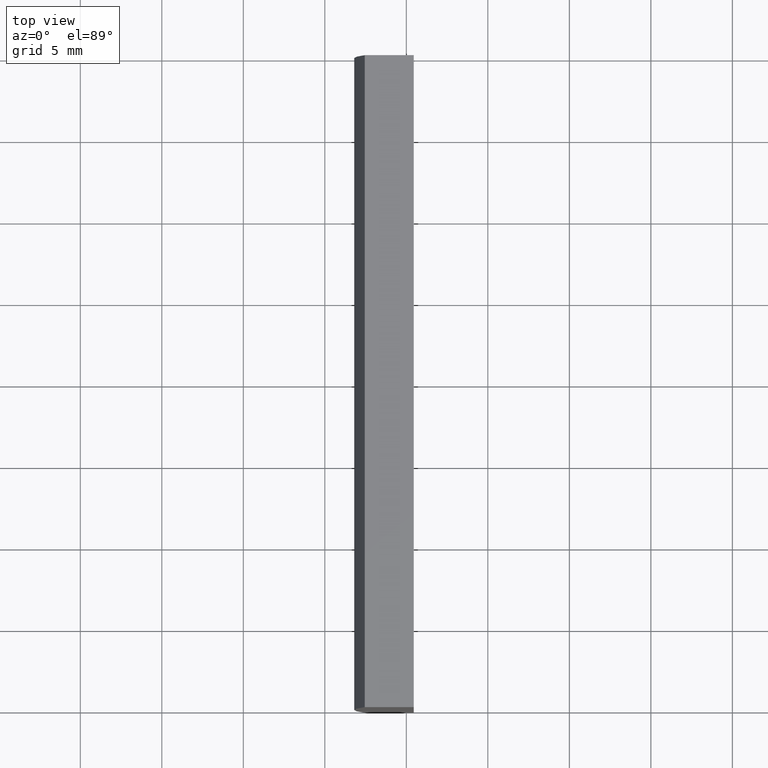
[diagram: clean part render]
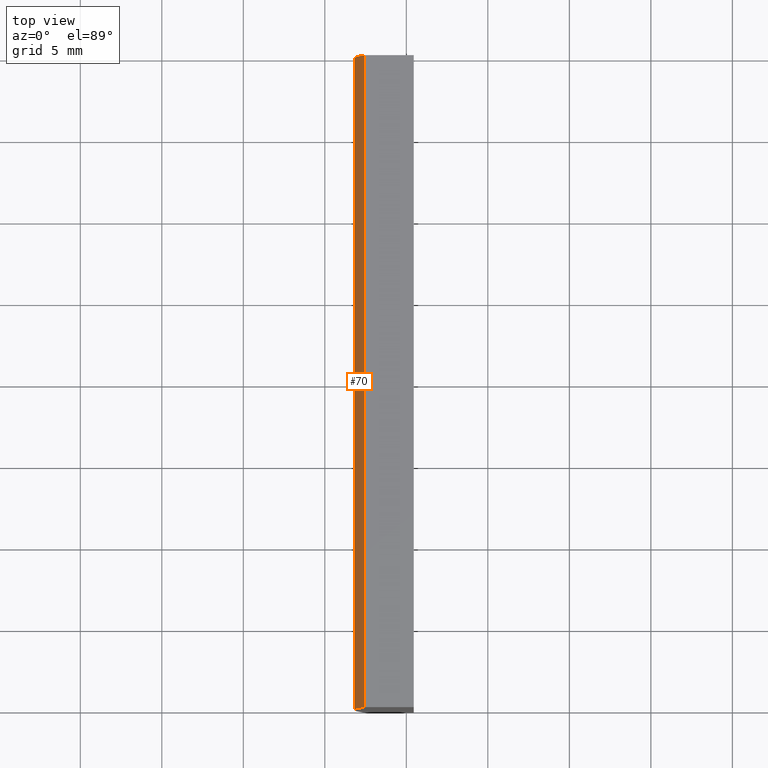
[diagram: same view with one face highlighted and labeled with its STEP entity id]
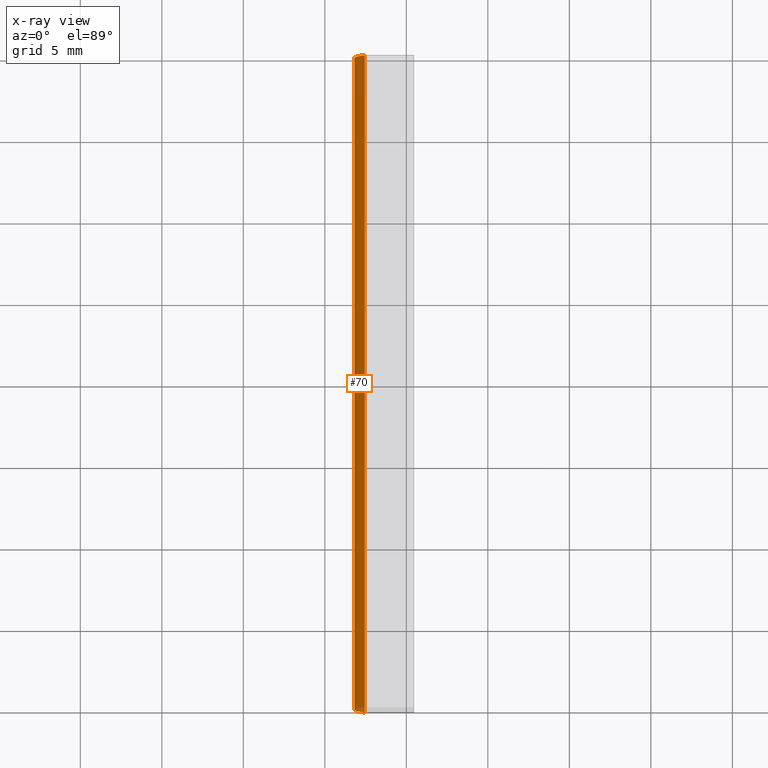
[diagram: x-ray of the same camera — body ghosted, the highlighted face saturated]
A machine part, top view. The second image highlights one B-rep face of the part: STEP entity #70.
The next image is the same camera in x-ray: the body ghosted, the highlighted face saturated — about 0% of this face is hidden behind the body in this view.
In plain terms, the highlighted cylindrical surface (partial cylindrical patch) has radius 77.55 mm, axis along (-0, -1, -0).
Its self-contained STEP definition (entity closure, byte-faithful):
#3 = CARTESIAN_POINT ( 'NONE',  ( 4.355204334851265500, 0.0000000000000000000, 4.286263797015675000E-017 ) ) ;
#12 = ORIENTED_EDGE ( 'NONE', *, *, #165, .T. ) ;
#13 = AXIS2_PLACEMENT_3D ( 'NONE', #35, #116, #37 ) ;
#14 = CARTESIAN_POINT ( 'NONE',  ( -72.54734763840902200, 40.00000000000000000, -10.00000000000000000 ) ) ;
#17 = CYLINDRICAL_SURFACE ( 'NONE', #13, 77.54999999999999700 ) ;
#18 = VERTEX_POINT ( 'NONE', #154 ) ;
#35 = CARTESIAN_POINT ( 'NONE',  ( 4.355204334851265500, 40.00000000000000000, 4.286263797015675000E-017 ) ) ;
#37 = DIRECTION ( 'NONE',  ( 0.0000000000000000000, 0.0000000000000000000, -1.000000000000000000 ) ) ;
#38 = DIRECTION ( 'NONE',  ( 0.0000000000000000000, 0.0000000000000000000, 1.000000000000000000 ) ) ;
#49 = LINE ( 'NONE', #14, #98 ) ;
#56 = AXIS2_PLACEMENT_3D ( 'NONE', #185, #80, #88 ) ;
#65 = VECTOR ( 'NONE', #68, 1000.000000000000000 ) ;
#68 = DIRECTION ( 'NONE',  ( -0.0000000000000000000, -1.000000000000000000, -0.0000000000000000000 ) ) ;
#70 = ADVANCED_FACE ( 'NONE', ( #150 ), #17, .T. ) ;
#72 = CIRCLE ( 'NONE', #138, 77.54999999999999700 ) ;
#80 = DIRECTION ( 'NONE',  ( 0.0000000000000000000, 1.000000000000000000, 0.0000000000000000000 ) ) ;
#83 = VERTEX_POINT ( 'NONE', #189 ) ;
#86 = EDGE_CURVE ( 'NONE', #89, #83, #155, .T. ) ;
#88 = DIRECTION ( 'NONE',  ( 0.0000000000000000000, 0.0000000000000000000, 1.000000000000000000 ) ) ;
#89 = VERTEX_POINT ( 'NONE', #130 ) ;
#90 = ORIENTED_EDGE ( 'NONE', *, *, #101, .F. ) ;
#98 = VECTOR ( 'NONE', #129, 1000.000000000000000 ) ;
#101 = EDGE_CURVE ( 'NONE', #83, #18, #114, .T. ) ;
#114 = LINE ( 'NONE', #179, #65 ) ;
#116 = DIRECTION ( 'NONE',  ( -0.0000000000000000000, -1.000000000000000000, -0.0000000000000000000 ) ) ;
#129 = DIRECTION ( 'NONE',  ( -0.0000000000000000000, -1.000000000000000000, -0.0000000000000000000 ) ) ;
#130 = CARTESIAN_POINT ( 'NONE',  ( -72.54734763840902200, 40.00000000000000000, -10.00000000000000000 ) ) ;
#138 = AXIS2_PLACEMENT_3D ( 'NONE', #3, #197, #38 ) ;
#147 = ORIENTED_EDGE ( 'NONE', *, *, #86, .F. ) ;
#150 = FACE_OUTER_BOUND ( 'NONE', #190, .T. ) ;
#151 = VERTEX_POINT ( 'NONE', #170 ) ;
#154 = CARTESIAN_POINT ( 'NONE',  ( -72.54734763840902200, 0.0000000000000000000, 10.00000000000000000 ) ) ;
#155 = CIRCLE ( 'NONE', #56, 77.54999999999999700 ) ;
#165 = EDGE_CURVE ( 'NONE', #89, #151, #49, .T. ) ;
#170 = CARTESIAN_POINT ( 'NONE',  ( -72.54734763840902200, 0.0000000000000000000, -10.00000000000000000 ) ) ;
#179 = CARTESIAN_POINT ( 'NONE',  ( -72.54734763840902200, 40.00000000000000000, 10.00000000000000000 ) ) ;
#185 = CARTESIAN_POINT ( 'NONE',  ( 4.355204334851265500, 40.00000000000000000, 4.286263797015675000E-017 ) ) ;
#189 = CARTESIAN_POINT ( 'NONE',  ( -72.54734763840902200, 40.00000000000000000, 10.00000000000000000 ) ) ;
#190 = EDGE_LOOP ( 'NONE', ( #194, #90, #147, #12 ) ) ;
#194 = ORIENTED_EDGE ( 'NONE', *, *, #200, .T. ) ;
#197 = DIRECTION ( 'NONE',  ( 0.0000000000000000000, 1.000000000000000000, 0.0000000000000000000 ) ) ;
#200 = EDGE_CURVE ( 'NONE', #151, #18, #72, .T. ) ;